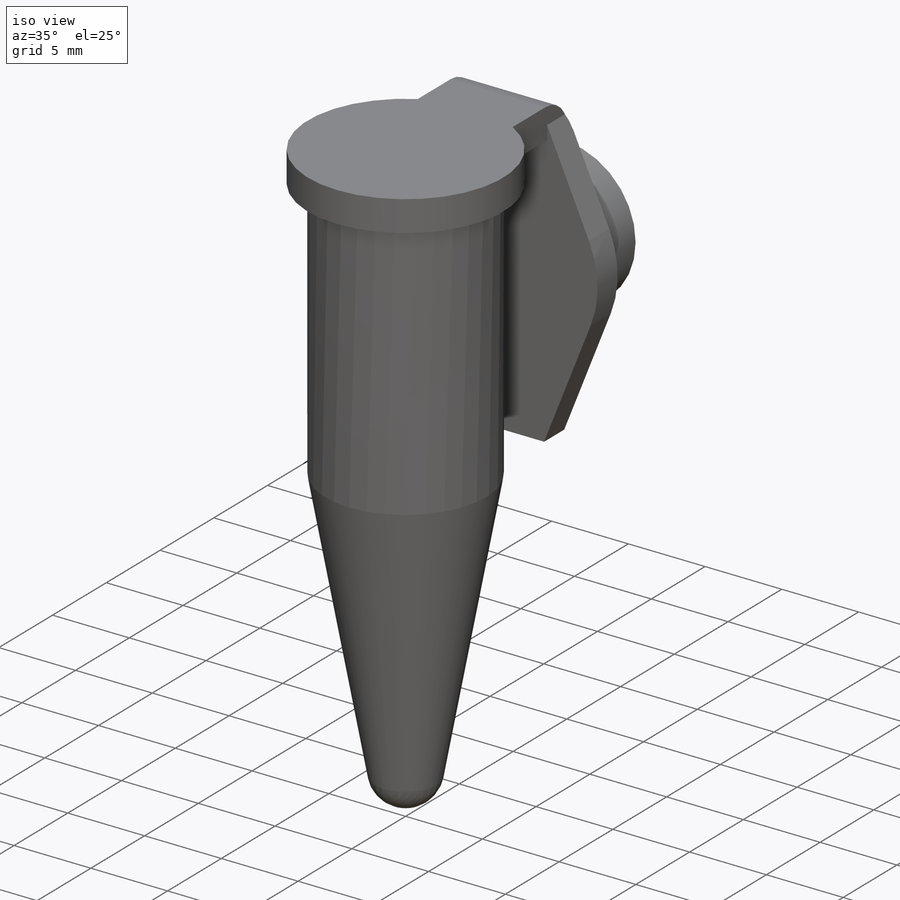
[diagram: iso view]
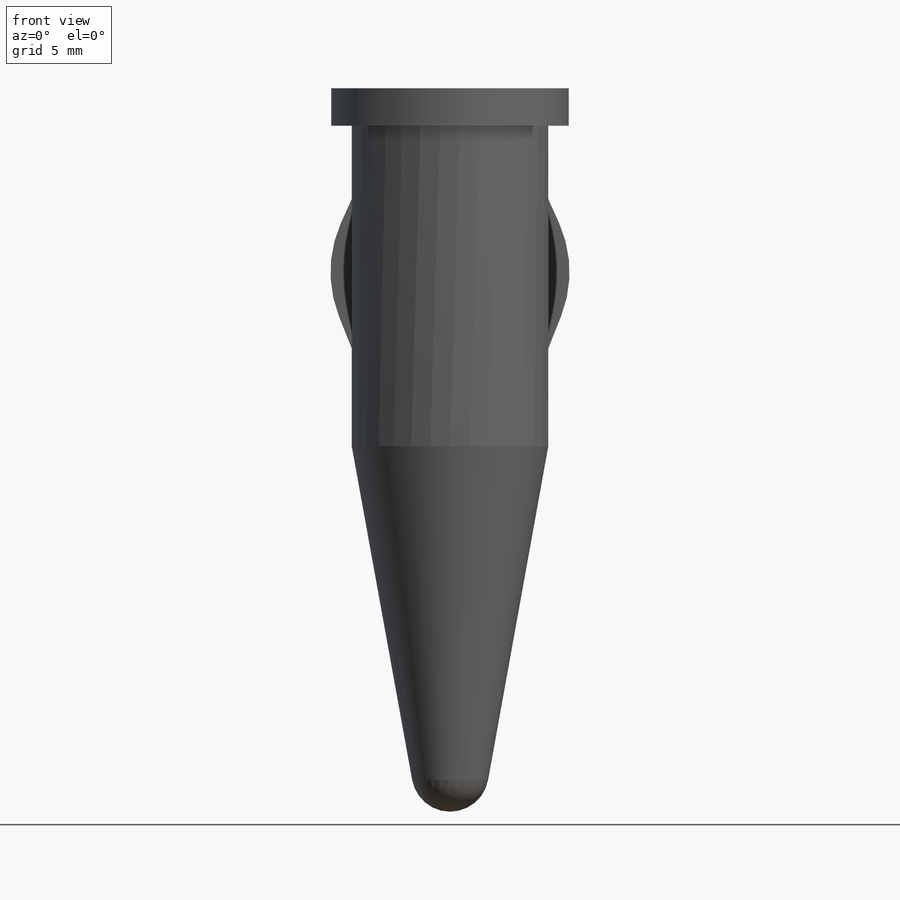
[diagram: front view]
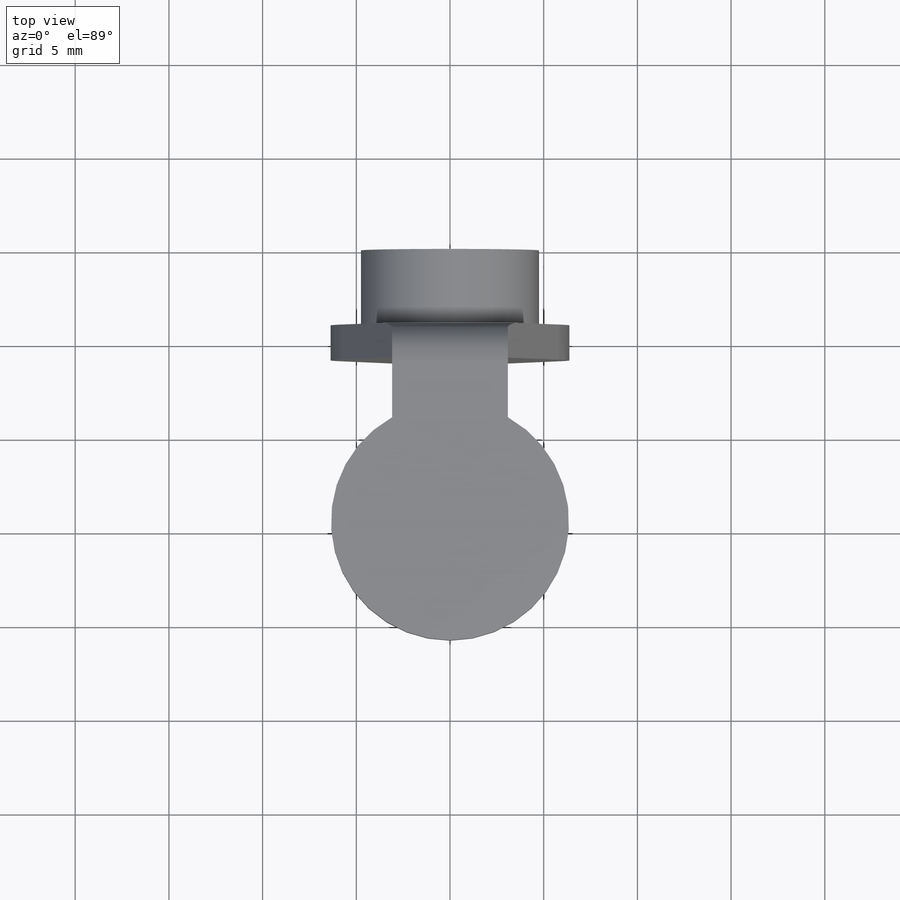
[diagram: top view]
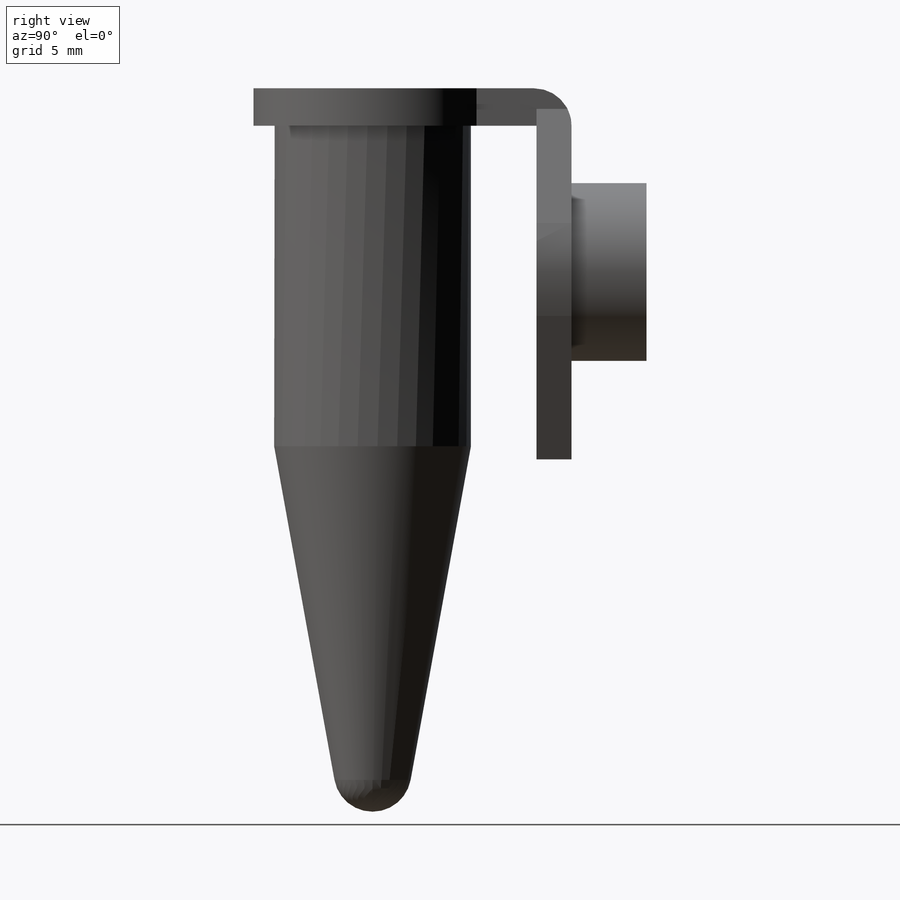
[diagram: right view]
SOLIDWORKS PART (.sldprt)
format: sldprt  version: not decoded by parser v0  size: 190,976 bytes
history: native  units: mm
features: sketch x4, extrude x3, material x1, revolve x1, fillet x1 (+12 scaffold rows collapsed)
feature tree (22):
  scaffold x12  (default folders/planes/origin — collapsed)
  material  "Material <not specified>"
  sketch  "Sketch1"  dims[D1=38.6mm D2=2.0mm D3=17.8mm D4=1.7mm D5=5.25mm D6=6.35mm]
  revolve  "Revolve1"  Angle=360deg
  sketch  "Sketch2"  dims[D1=6.18mm D2=3.2mm]
  extrude  "Boss-Extrude1"  Depth=2mm
  sketch  "Sketch3"  dims[c1.D1=~21.19577mm c1.D2=10.0mm c1.D3=8.7mm c1.D4=1.1mm c1.D5=5.8mm c2.D3=1.1mm c2.D4=1.1mm c2.D6=8.7mm]
  extrude  "Boss-Extrude2"  Depth=1.87mm
  sketch  "Sketch4"  dims[D1=9.5mm D2=6.0mm]
  extrude  "Boss-Extrude3"  Depth=4mm
  fillet  "Fillet1"  Radius=2mm
decode coverage: 9 of 9 modeling features carry decoded parameters
note: ~ marks probable driven/reference dimensions
note: suppression state not decoded; provenance and decode notes live in map.json
